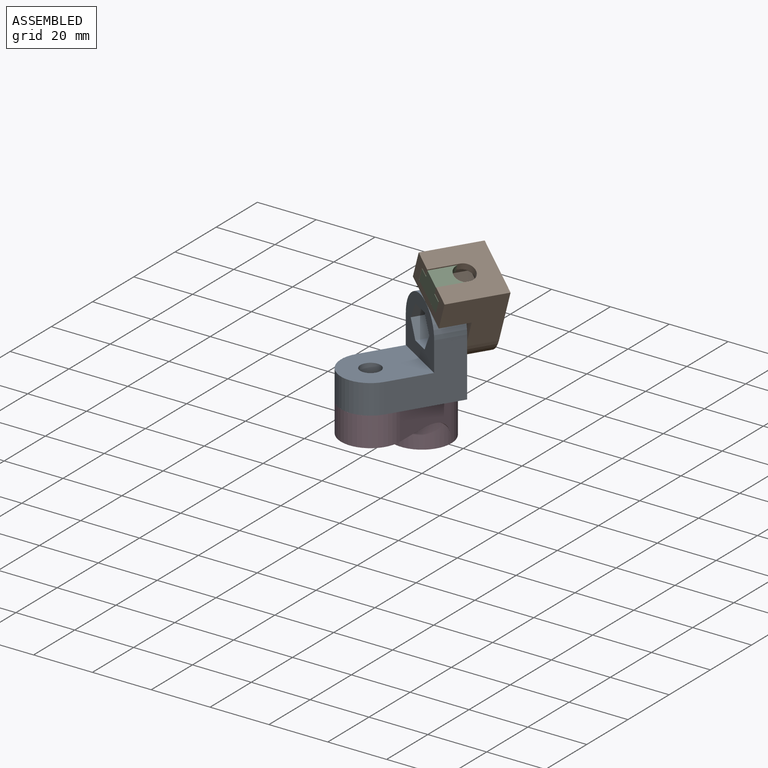
[diagram: assembled view]
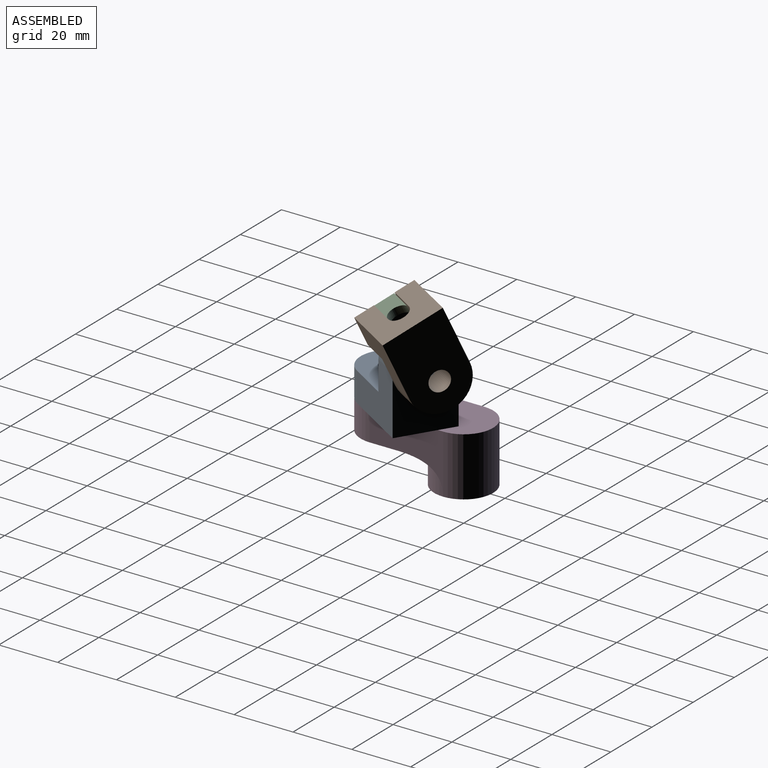
[diagram: assembled view, second angle]
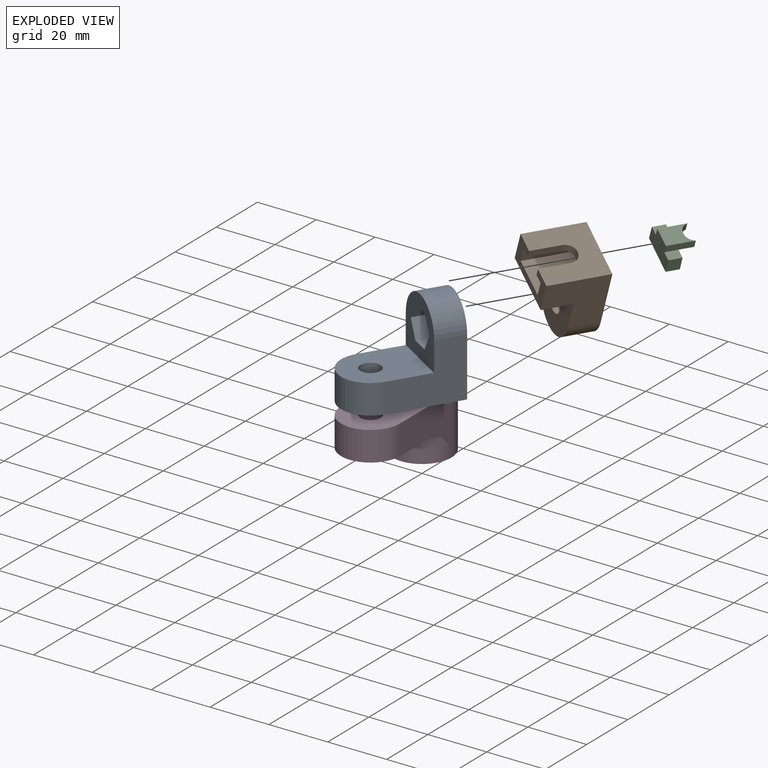
[diagram: exploded view]
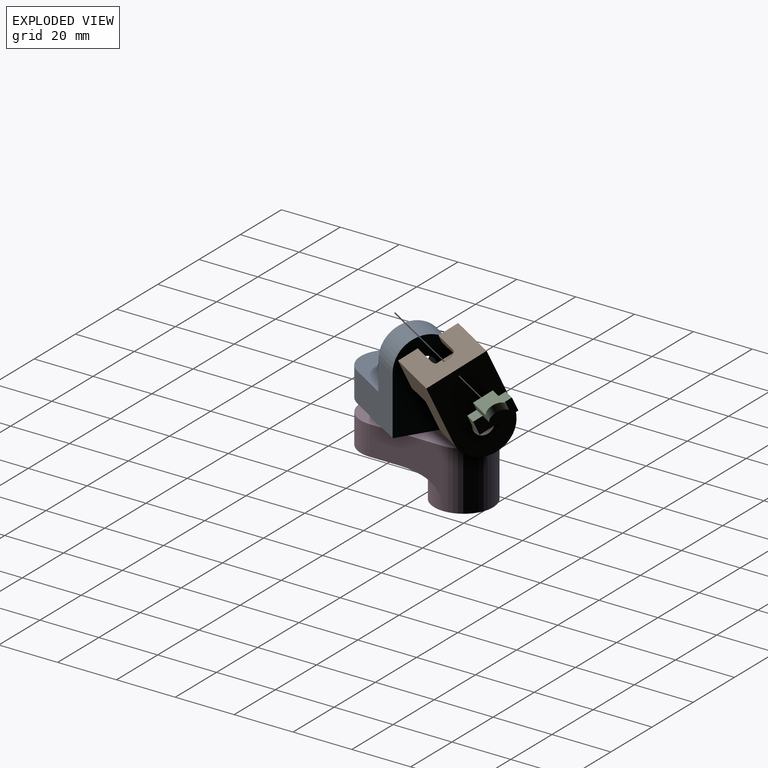
[diagram: exploded view, second angle]
ASSEMBLY  parts=4 mates=3
PART A: 17 faces, bbox 35x20x30 mm
  f0: plane 20x20mm, normal (1,0,0), area 244.9mm2, adj f2,f3,f5,f9,f10,f11,f12,f13
  f1: cylinder r=3.43mm len=6.86mm, axis (1,0,0), area 112.6mm2, adj f4,f16
  f2: plane 25x20mm, normal (0,0,1), area 420.1mm2, adj f0,f3,f5,f6,f7
  f3: plane 25x20mm, normal (0,1,0), area 350mm2, adj f0,f2,f4,f7,f8,f9
  f4: plane 30x20mm, normal (-1,0,0), area 520.1mm2, adj f1,f3,f5,f8,f9
  f5: plane 25x20mm, normal (0,-1,0), area 350mm2, adj f0,f2,f4,f7,f8,f9
  f6: cylinder r=3.43mm len=10mm, axis (0,0,-1), area 215.5mm2, adj f2,f8
  f7: cylinder r=10mm len=20mm, axis (0,0,-1), area 314.2mm2, adj f2,f3,f5,f8
  f8: plane 35x20mm, normal (0,0,-1), area 620.1mm2, adj f3,f4,f5,f6,f7
  f9: cylinder r=10mm len=20mm, axis (-1,0,0), area 314.2mm2, adj f0,f3,f4,f5
  f10: plane 6.57x4.78mm, normal (0,0,-1), area 31.4mm2, adj f0,f11,f15,f16
  f11: plane 5.69x4.78mm, normal (0,0.87,-0.5), area 31.4mm2, adj f0,f10,f12,f16
  f12: plane 5.69x4.78mm, normal (0,0.87,0.5), area 31.4mm2, adj f0,f11,f13,f16
  f13: plane 6.57x4.78mm, normal (0,0,1), area 31.4mm2, adj f0,f12,f14,f16
  f14: plane 5.69x4.78mm, normal (0,-0.87,0.5), area 31.4mm2, adj f0,f13,f15,f16
  f15: plane 5.69x4.78mm, normal (0,-0.87,-0.5), area 31.4mm2, adj f0,f10,f14,f16
  f16: plane 13.14x11.38mm, normal (1,0,0), area 75.2mm2, adj f1,f10,f11,f12,f13,f14,f15
PART B: 17 faces, bbox 20x20x30 mm
  f0: plane 20x20mm, normal (0,0,1), area 313mm2, adj f2,f3,f6,f8,f14,f15,f16
  f1: plane 20x20mm, normal (-1,0,0), area 320.1mm2, adj f2,f3,f4,f5,f7
  f2: plane 20x20mm, normal (0,1,0), area 300mm2, adj f0,f1,f4,f6,f7,f8
  f3: plane 20x20mm, normal (0,-1,0), area 300mm2, adj f0,f1,f4,f6,f7,f8
  f4: cylinder r=10mm len=20mm, axis (-1,0,0), area 314.2mm2, adj f1,f2,f3,f6
  f5: cylinder r=3.43mm len=10mm, axis (-1,0,0), area 215.5mm2, adj f1,f6
  f6: plane 30x20mm, normal (1,0,0), area 520.1mm2, adj f0,f2,f3,f4,f5
  f7: plane 20x10mm, normal (0,0,-1), area 200mm2, adj f1,f2,f3,f8
  f8: plane 20x10mm, normal (-1,0,0), area 117.2mm2, adj f0,f2,f3,f7,f9,f10,f11,f12
  f9: plane 15.69x13.08mm, normal (0,0,-1), area 118.2mm2, adj f8,f10,f12,f13,f14,f15,f16
  f10: plane 15.69x5.03mm, normal (0,-1,0), area 78.9mm2, adj f8,f9,f11,f13
  f11: plane 15.69x13.08mm, normal (0,0,1), area 205.2mm2, adj f8,f10,f12,f13
  f12: plane 15.69x5.03mm, normal (0,1,0), area 78.9mm2, adj f8,f9,f11,f13
  f13: plane 13.08x5.03mm, normal (-1,0,0), area 65.8mm2, adj f9,f10,f11,f12
  f14: plane 10x2.49mm, normal (0,1,0), area 24.9mm2, adj f0,f8,f9,f16
  f15: plane 10x2.49mm, normal (0,-1,0), area 24.9mm2, adj f0,f8,f9,f16
  f16: cylinder r=3.43mm len=6.86mm, axis (0,0,-1), area 26.8mm2, adj f0,f9,f14,f15
PART C: 12 faces, bbox 9.1x12.8x7.4 mm
  f0: plane 9.08x2.61mm, normal (0,1,0), area 23.7mm2, adj f2,f8,f9,f10,f11
  f1: plane 9.08x2.61mm, normal (0,-1,0), area 23.7mm2, adj f3,f8,f9,f10,f11
  f2: plane 4.31x3.11mm, normal (0,0,1), area 13.4mm2, adj f0,f6,f7,f8
  f3: plane 4.31x3.11mm, normal (0,0,1), area 13.4mm2, adj f1,f4,f7,f8
  f4: plane 4.78x4.31mm, normal (0,-1,0), area 20.6mm2, adj f3,f5,f7,f8
  f5: plane 12.83x4.31mm, normal (0,0,-1), area 55.3mm2, adj f4,f6,f7,f8
  f6: plane 4.78x4.31mm, normal (0,1,0), area 20.6mm2, adj f2,f5,f7,f8
  f7: plane 12.83x4.78mm, normal (1,0,0), area 61.3mm2, adj f2,f3,f4,f5,f6,f9
  f8: plane 12.83x7.39mm, normal (-1,0,0), area 78.5mm2, adj f0,f1,f2,f3,f4,f5,f6,f10
  f9: plane 6.6x4.77mm, normal (0,0,-1), area 19.3mm2, adj f0,f1,f7,f11
  f10: plane 9.08x6.6mm, normal (0,0,1), area 47.7mm2, adj f0,f1,f8,f11
  f11: cylinder r=3.43mm len=6.6mm, axis (0,0,1), area 23.3mm2, adj f0,f1,f9,f10
PART D: 17 faces, bbox 20x45x20 mm
  f0: plane 20x20mm, normal (0,0,-1), area 244.9mm2, adj f6,f7,f8,f9,f10,f11,f12,f13
  f1: cylinder r=3.43mm len=6.86mm, axis (0,0,-1), area 112.6mm2, adj f4,f16
  f2: cylinder r=10mm len=20mm, axis (0,0,-1), area 628.3mm2, adj f4,f5,f7,f8
  f3: cylinder r=10mm len=20mm, axis (0,0,-1), area 258mm2, adj f5,f6
  f4: plane 45x20mm, normal (0,0,1), area 777.2mm2, adj f1,f2,f7,f8,f9
  f5: plane 20x20mm, normal (0,0,-1), area 314.2mm2, adj f2,f3
  f6: extruded ~20x15mm, area 145.5mm2, adj f0,f3,f7,f8
  f7: plane 25x20mm, normal (1,0,0), area 275mm2, adj f0,f2,f4,f6,f9
  f8: plane 25x20mm, normal (-1,0,0), area 275mm2, adj f0,f2,f4,f6,f9
  f9: cylinder r=10mm len=20mm, axis (0,0,-1), area 314.2mm2, adj f0,f4,f7,f8
  f10: plane 6.57x4.78mm, normal (-1,0,0), area 31.4mm2, adj f0,f11,f15,f16
  f11: plane 5.69x4.78mm, normal (-0.5,0.87,0), area 31.4mm2, adj f0,f10,f12,f16
  f12: plane 5.69x4.78mm, normal (0.5,0.87,0), area 31.4mm2, adj f0,f11,f13,f16
  f13: plane 6.57x4.78mm, normal (1,0,0), area 31.4mm2, adj f0,f12,f14,f16
  f14: plane 5.69x4.78mm, normal (0.5,-0.87,0), area 31.4mm2, adj f0,f13,f15,f16
  f15: plane 5.69x4.78mm, normal (-0.5,-0.87,0), area 31.4mm2, adj f0,f10,f14,f16
  f16: plane 13.14x11.38mm, normal (0,0,-1), area 75.2mm2, adj f1,f10,f11,f12,f13,f14,f15
PLACE A rot(axis=(0,0,-1),121.7deg) t=(0,-25,20)mm
PLACE B rot(axis=(0.35,0.2,0.91),62.7deg) t=(13.15,-3.74,40)mm
PLACE C rot(axis=(0.35,0.2,0.91),62.7deg) t=(13.18,-15.52,53.51)mm
PLACE D at identity
MATE revolute B.f5 <-> A.f1  axis (-0.53,-0.85,0) through (13.15,-3.74,40)mm
MATE slider C.f8 <-> B.f8  axis (-0.53,-0.85,0) through (17.32,-18.08,48.7)mm
MATE revolute A.f6 <-> D.f1  axis (0,0,-1) through (0,-25,20)mm
